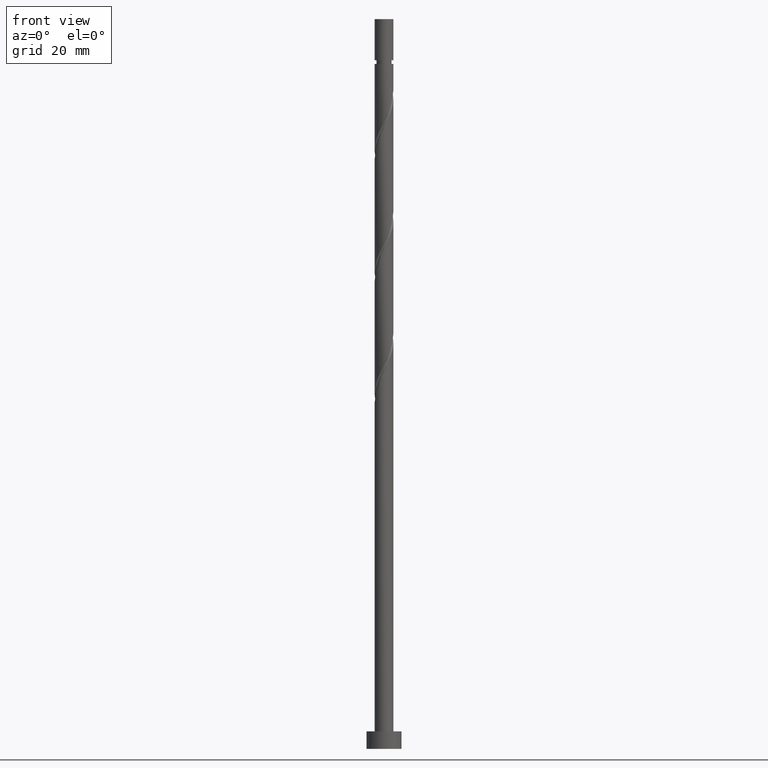
[diagram: clean part render]
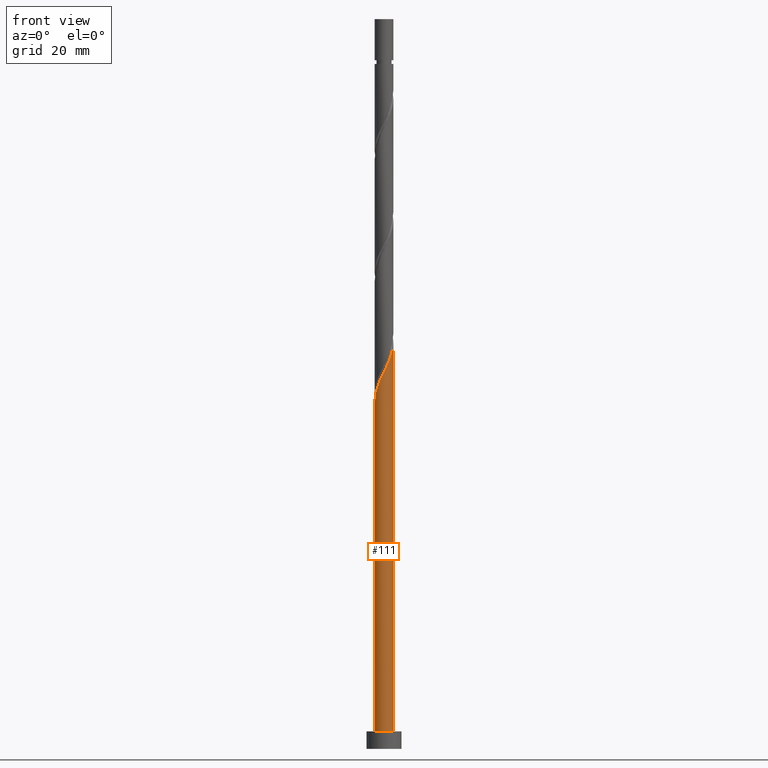
[diagram: same view with one face highlighted and labeled with its STEP entity id]
A machine part, front view. The second image highlights one B-rep face of the part: STEP entity #111.
In plain terms, the highlighted cylindrical surface (edge-blend (fillet) strip) has radius 1.6 mm, axis along (-0, -0, -1).
Its self-contained STEP definition (entity closure, byte-faithful):
#3 = VERTEX_POINT ( 'NONE', #1516 ) ;
#34 = EDGE_CURVE ( 'NONE', #677, #938, #893, .T. ) ;
#38 = DIRECTION ( 'NONE',  ( -0.000000000000000000, -0.000000000000000000, -1.000000000000000000 ) ) ;
#111 = ADVANCED_FACE ( 'NONE', ( #1173 ), #1416, .T. ) ;
#138 = CARTESIAN_POINT ( 'NONE',  ( -1.600000000000003197, -0.1608060504414698111, 59.68612137102846305 ) ) ;
#175 = EDGE_CURVE ( 'NONE', #663, #677, #655, .T. ) ;
#188 = DIRECTION ( 'NONE',  ( -1.000000000000000000, 0.000000000000000000, 0.000000000000000000 ) ) ;
#223 = CARTESIAN_POINT ( 'NONE',  ( 0.07004917744524548351, -1.618428969073946400, 64.70411923709087887 ) ) ;
#235 = CARTESIAN_POINT ( 'NONE',  ( 1.600000000000002087, 1.641744754761022341E-15, 69.76848346228729270 ) ) ;
#244 = CARTESIAN_POINT ( 'NONE',  ( 1.600000000000002087, 1.641744754761022341E-15, 69.76848346228729270 ) ) ;
#248 = CARTESIAN_POINT ( 'NONE',  ( 1.007959654899766688, -1.268162666732014721, 66.78745257042420747 ) ) ;
#252 = EDGE_LOOP ( 'NONE', ( #1174, #537, #1417, #1409 ) ) ;
#305 = CARTESIAN_POINT ( 'NONE',  ( 1.600000000000000089, 1.959434878635764737E-16, 3.000000000000000000 ) ) ;
#348 = CARTESIAN_POINT ( 'NONE',  ( 1.600000000000002309, -0.09115797991428971347, 69.57897237308002047 ) ) ;
#351 = LINE ( 'NONE', #962, #360 ) ;
#358 = CARTESIAN_POINT ( 'NONE',  ( 1.589646386272568712, -0.1817260757584568953, 69.39161923709089308 ) ) ;
#360 = VECTOR ( 'NONE', #705, 1000.000000000000000 ) ;
#439 = AXIS2_PLACEMENT_3D ( 'NONE', #658, #1148, #188 ) ;
#445 = CARTESIAN_POINT ( 'NONE',  ( 0.000000000000000000, 0.000000000000000000, 3.000000000000000000 ) ) ;
#456 = DIRECTION ( 'NONE',  ( 1.000000000000000000, 0.000000000000000000, 0.000000000000000000 ) ) ;
#458 = CARTESIAN_POINT ( 'NONE',  ( -0.4335013289621593713, -1.560863803471191247, 63.66245257042422878 ) ) ;
#495 = CARTESIAN_POINT ( 'NONE',  ( -1.568000000000002281, -0.3183959798741188285, 60.01661923709089308 ) ) ;
#537 = ORIENTED_EDGE ( 'NONE', *, *, #175, .F. ) ;
#648 = EDGE_CURVE ( 'NONE', #3, #938, #1096, .T. ) ;
#655 =( BOUNDED_CURVE ( )  B_SPLINE_CURVE ( 2, ( #859, #138, #495, #874, #1478, #1357, #752, #1572, #974, #458, #1446, #223, #1061, #845, #1550, #248, #1454, #1436, #1335, #728, #358, #348, #235 ),
 .UNSPECIFIED., .F., .T. ) 
 B_SPLINE_CURVE_WITH_KNOTS ( ( 3, 2, 2, 2, 2, 2, 2, 2, 2, 2, 2, 3 ),
 ( 0.05453220231385498551, 0.06250000000000000000, 0.07499999999999995559, 0.08750000000000002220, 0.09999999999999997780, 0.1125000000000000444, 0.1250000000000000000, 0.1374999999999999556, 0.1500000000000000222, 0.1624999999999999778, 0.1750000000000000444, 0.1795322023138553602 ),
 .UNSPECIFIED. ) 
 CURVE ( )  GEOMETRIC_REPRESENTATION_ITEM ( )  RATIONAL_B_SPLINE_CURVE ( ( 0.9039174447099425080, 0.9019565955404715840, 0.9090909090909201629, 0.8978984914501362269, 0.9090909090909201629, 0.8978984914501362269, 0.9090909090909201629, 0.8978984914501362269, 0.9090909090909201629, 0.8978984914501362269, 0.9090909090909201629, 0.8978984914501362269, 0.9090909090909201629, 0.8978984914501362269, 0.9090909090909201629, 0.8978984914501362269, 0.9090909090909201629, 0.8978984914501362269, 0.9090909090909201629, 0.8978984914501362269, 0.9090909090909201629, 0.9050328050005843616, 0.9039174447099422860 ) ) 
 REPRESENTATION_ITEM ( '' )  );
#658 = CARTESIAN_POINT ( 'NONE',  ( 0.000000000000000000, 0.000000000000000000, 125.0000000000000000 ) ) ;
#663 = VERTEX_POINT ( 'NONE', #931 ) ;
#677 = VERTEX_POINT ( 'NONE', #244 ) ;
#684 = AXIS2_PLACEMENT_3D ( 'NONE', #445, #825, #456 ) ;
#705 = DIRECTION ( 'NONE',  ( -0.000000000000000000, -0.000000000000000000, -1.000000000000000000 ) ) ;
#728 = CARTESIAN_POINT ( 'NONE',  ( 1.560863803471191247, -0.4335013289621594268, 68.87078590375753606 ) ) ;
#752 = CARTESIAN_POINT ( 'NONE',  ( -1.081390185820700900, -1.179235034253425018, 62.09995257042422168 ) ) ;
#825 = DIRECTION ( 'NONE',  ( 0.000000000000000000, 0.000000000000000000, 1.000000000000000000 ) ) ;
#845 = CARTESIAN_POINT ( 'NONE',  ( 0.5667427823029920209, -1.517571030926057496, 65.74578590375755027 ) ) ;
#859 = CARTESIAN_POINT ( 'NONE',  ( -1.600000000000001865, 2.653779192627405425E-15, 59.35181679562062129 ) ) ;
#874 = CARTESIAN_POINT ( 'NONE',  ( -1.517571030926057274, -0.5667427823029920209, 60.53745257042422168 ) ) ;
#893 = LINE ( 'NONE', #989, #1189 ) ;
#931 = CARTESIAN_POINT ( 'NONE',  ( -1.600000000000001865, 2.653779192627405425E-15, 59.35181679562062129 ) ) ;
#938 = VERTEX_POINT ( 'NONE', #305 ) ;
#962 = CARTESIAN_POINT ( 'NONE',  ( -1.600000000000000089, 0.000000000000000000, 125.0000000000000000 ) ) ;
#974 = CARTESIAN_POINT ( 'NONE',  ( -0.6640595169357733640, -1.455687108539137187, 63.14161923709088597 ) ) ;
#989 = CARTESIAN_POINT ( 'NONE',  ( 1.600000000000000089, 1.959434878635764737E-16, 125.0000000000000000 ) ) ;
#1061 = CARTESIAN_POINT ( 'NONE',  ( 0.3183959798741187175, -1.568000000000002281, 65.22495257042422168 ) ) ;
#1096 = CIRCLE ( 'NONE', #684, 1.600000000000000089 ) ;
#1148 = DIRECTION ( 'NONE',  ( -0.000000000000000000, -0.000000000000000000, -1.000000000000000000 ) ) ;
#1173 = FACE_OUTER_BOUND ( 'NONE', #252, .T. ) ;
#1174 = ORIENTED_EDGE ( 'NONE', *, *, #34, .F. ) ;
#1189 = VECTOR ( 'NONE', #38, 1000.000000000000000 ) ;
#1335 = CARTESIAN_POINT ( 'NONE',  ( 1.455687108539137187, -0.6640595169357733640, 68.34995257042420747 ) ) ;
#1357 = CARTESIAN_POINT ( 'NONE',  ( -1.268162666732014721, -1.007959654899766910, 61.57911923709090019 ) ) ;
#1409 = ORIENTED_EDGE ( 'NONE', *, *, #648, .T. ) ;
#1416 = CYLINDRICAL_SURFACE ( 'NONE', #439, 1.600000000000000089 ) ;
#1417 = ORIENTED_EDGE ( 'NONE', *, *, #1422, .T. ) ;
#1422 = EDGE_CURVE ( 'NONE', #663, #3, #351, .T. ) ;
#1436 = CARTESIAN_POINT ( 'NONE',  ( 1.350510413607083127, -0.8946177049093871902, 67.82911923709089308 ) ) ;
#1446 = CARTESIAN_POINT ( 'NONE',  ( -0.1817260757584568953, -1.589646386272568712, 64.18328590375756448 ) ) ;
#1454 = CARTESIAN_POINT ( 'NONE',  ( 1.179235034253425018, -1.081390185820700900, 67.30828590375756448 ) ) ;
#1478 = CARTESIAN_POINT ( 'NONE',  ( -1.392866848829036330, -0.7873512186013793546, 61.05828590375755738 ) ) ;
#1516 = CARTESIAN_POINT ( 'NONE',  ( -1.600000000000000089, 0.000000000000000000, 3.000000000000000000 ) ) ;
#1550 = CARTESIAN_POINT ( 'NONE',  ( 0.7873512186013793546, -1.392866848829036330, 66.26661923709089308 ) ) ;
#1572 = CARTESIAN_POINT ( 'NONE',  ( -0.8946177049093868572, -1.350510413607083127, 62.62078590375756448 ) ) ;